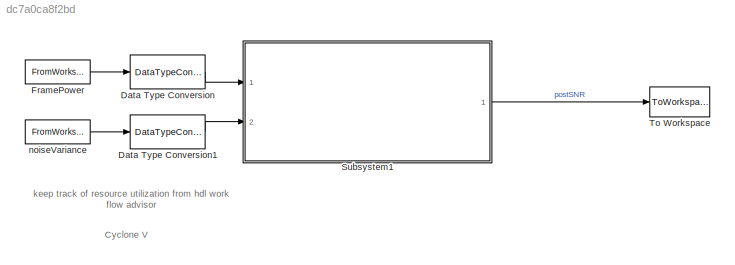
MODEL slx_dc7a0ca8f2bd
KIND model
CONFIG AbsTol = auto
CONFIG EnableMultiTasking = off
CONFIG FixedStep = auto
CONFIG MaxStep = auto
CONFIG MinStep = auto
CONFIG RelTol = 1e-3
CONFIG SampleTimeConstraint = Unconstrained
CONFIG Solver = VariableStepAuto
CONFIG SolverName = VariableStepAuto
CONFIG StartTime = 0.0
CONFIG StopTime = 10.0
BLOCK [DataTypeConversion] Data Type Conversion
  Commented = through
  OutDataTypeStr = fixdt(1,32,28)
  RndMeth = Floor
  SaturateOnIntegerOverflow = off
BLOCK [DataTypeConversion] Data Type Conversion1
  Commented = through
  OutDataTypeStr = fixdt(1,32,28)
  RndMeth = Floor
  SaturateOnIntegerOverflow = off
BLOCK [FromWorkspace] FramePower
  SampleTime = 0
  VariableName = framePow
  ZeroCross = on
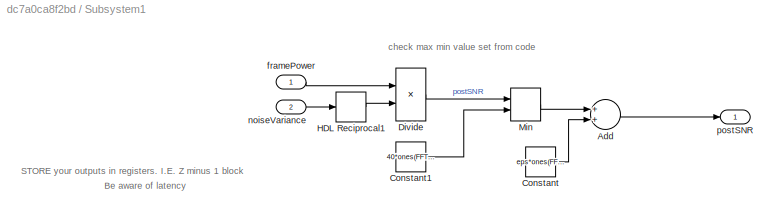
BLOCK [SubSystem] Subsystem1
  Ports = [2, 1]
  RequestExecContextInheritance = off
BLOCK [Sum] Subsystem1/Add
  InputSameDT = off
  OutDataTypeStr = Inherit: Inherit via internal rule
  Ports = [2, 1]
  SaturateOnIntegerOverflow = off
BLOCK [Constant] Subsystem1/Constant
  SampleTime = -1
  Value = eps*ones(FFT_size, 1)
BLOCK [Constant] Subsystem1/Constant1
  SampleTime = -1
  Value = 40*ones(FFT_size, 1)
BLOCK [Product] Subsystem1/Divide
  InputSameDT = off
  Inputs = **
  OutDataTypeStr = Inherit: Inherit via internal rule
  Ports = [2, 1]
BLOCK [Reciprocal] Subsystem1/HDL Reciprocal1
BLOCK [MinMax] Subsystem1/Min
  InputSameDT = off
  Inputs = 2
  Ports = [2, 1]
  SaturateOnIntegerOverflow = off
BLOCK [Inport] Subsystem1/framePower
  IconDisplay = Port number
BLOCK [Inport] Subsystem1/noiseVariance
  IconDisplay = Port number
  Port = 2
BLOCK [Outport] Subsystem1/postSNR
  IconDisplay = Port number
BLOCK [ToWorkspace] To Workspace
  FixptAsFi = on
  MaxDataPoints = inf
  Ports = [1]
  SampleTime = -1
  SaveFormat = Timeseries
  VariableName = postSNR_Verify
BLOCK [FromWorkspace] noiseVariance
  SampleTime = 0
  VariableName = noiseVariance
  ZeroCross = on
ANNOTATION (root): Cyclone V
ANNOTATION (root): keep track of resource utilization from hdl work flow advisor
ANNOTATION Subsystem1: Be aware of latency
ANNOTATION Subsystem1: STORE your outputs in registers. I.E. Z minus 1 block
ANNOTATION Subsystem1: check max min value set from code
LINE Data Type Conversion1:1 -> Subsystem1:2
LINE Data Type Conversion:1 -> Subsystem1:1
LINE FramePower:1 -> Data Type Conversion:1
LINE Subsystem1/Add:1 -> Subsystem1/postSNR:1
LINE Subsystem1/Constant1:1 -> Subsystem1/Min:2
LINE Subsystem1/Constant:1 -> Subsystem1/Add:2
LINE Subsystem1/Divide:1 -> Subsystem1/Min:1
LINE Subsystem1/HDL Reciprocal1:1 -> Subsystem1/Divide:2
LINE Subsystem1/Min:1 -> Subsystem1/Add:1
LINE Subsystem1/framePower:1 -> Subsystem1/Divide:1
LINE Subsystem1/noiseVariance:1 -> Subsystem1/HDL Reciprocal1:1
LINE Subsystem1:1 -> To Workspace:1
LINE noiseVariance:1 -> Data Type Conversion1:1
